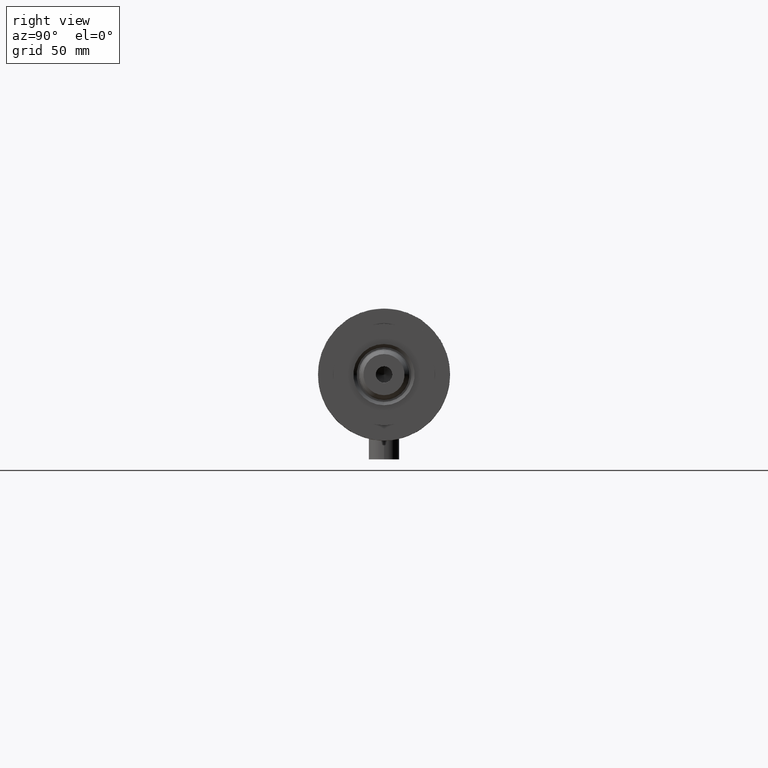
[diagram: clean part render]
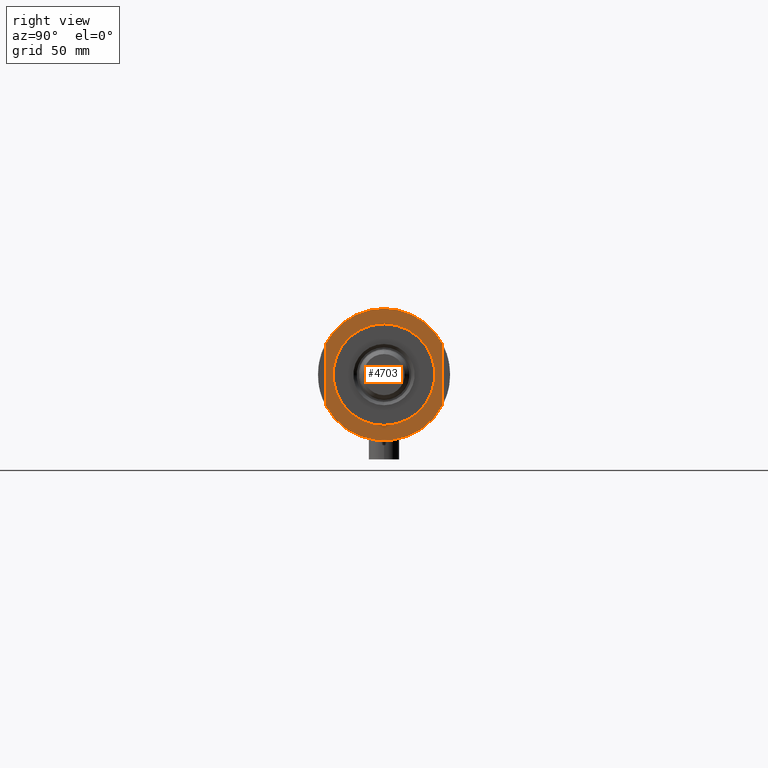
[diagram: same view with one face highlighted and labeled with its STEP entity id]
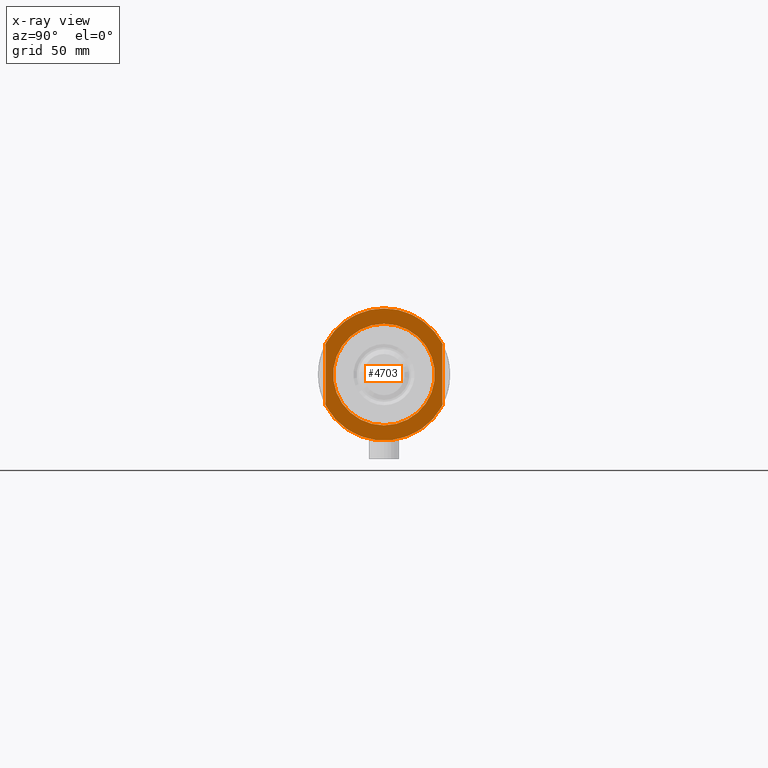
[diagram: x-ray of the same camera — body ghosted, the highlighted face saturated]
A machine part, right view. The second image highlights one B-rep face of the part: STEP entity #4703.
The next image is the same camera in x-ray: the body ghosted, the highlighted face saturated — about 0% of this face is hidden behind the body in this view.
In plain terms, the highlighted planar face has unit normal (1, 0, -0).
Its self-contained STEP definition (entity closure, byte-faithful):
#53 = AXIS2_PLACEMENT_3D ( 'NONE', #522, #3684, #4101 ) ;
#102 = ORIENTED_EDGE ( 'NONE', *, *, #3734, .F. ) ;
#146 = CIRCLE ( 'NONE', #2332, 26.00000000000000355 ) ;
#265 = ORIENTED_EDGE ( 'NONE', *, *, #4453, .T. ) ;
#314 = DIRECTION ( 'NONE',  ( 0.000000000000000000, 0.000000000000000000, 1.000000000000000000 ) ) ;
#338 = EDGE_LOOP ( 'NONE', ( #2883, #265 ) ) ;
#399 = VECTOR ( 'NONE', #1538, 1000.000000000000000 ) ;
#507 = DIRECTION ( 'NONE',  ( 1.000000000000000000, 0.000000000000000000, 0.000000000000000000 ) ) ;
#522 = CARTESIAN_POINT ( 'NONE',  ( 0.000000000000000000, 0.000000000000000000, 15.50000000000000000 ) ) ;
#603 = CARTESIAN_POINT ( 'NONE',  ( 0.000000000000000000, 0.000000000000000000, 15.50000000000000000 ) ) ;
#627 = DIRECTION ( 'NONE',  ( 1.000000000000000000, 0.000000000000000000, 0.000000000000000000 ) ) ;
#755 = ORIENTED_EDGE ( 'NONE', *, *, #1367, .F. ) ;
#779 = CARTESIAN_POINT ( 'NONE',  ( -12.12435565298214613, 23.00000000000000355, 15.50000000000000000 ) ) ;
#804 = CARTESIAN_POINT ( 'NONE',  ( 0.000000000000000000, 0.000000000000000000, 15.50000000000000000 ) ) ;
#869 = DIRECTION ( 'NONE',  ( 1.000000000000000000, 0.000000000000000000, 0.000000000000000000 ) ) ;
#885 = CIRCLE ( 'NONE', #4080, 26.00000000000000355 ) ;
#923 = CARTESIAN_POINT ( 'NONE',  ( 0.000000000000000000, 0.000000000000000000, 15.50000000000000000 ) ) ;
#995 = VERTEX_POINT ( 'NONE', #779 ) ;
#1042 = DIRECTION ( 'NONE',  ( 0.000000000000000000, 0.000000000000000000, 1.000000000000000000 ) ) ;
#1043 = VECTOR ( 'NONE', #2930, 1000.000000000000000 ) ;
#1151 = AXIS2_PLACEMENT_3D ( 'NONE', #923, #1709, #507 ) ;
#1154 = CIRCLE ( 'NONE', #53, 20.00000000000000000 ) ;
#1173 = ORIENTED_EDGE ( 'NONE', *, *, #2143, .T. ) ;
#1367 = EDGE_CURVE ( 'NONE', #995, #2522, #4236, .T. ) ;
#1424 = CARTESIAN_POINT ( 'NONE',  ( -12.12435565298215145, 23.00000000000000355, 15.50000000000000000 ) ) ;
#1538 = DIRECTION ( 'NONE',  ( -1.000000000000000000, -0.000000000000000000, -0.000000000000000000 ) ) ;
#1709 = DIRECTION ( 'NONE',  ( -0.000000000000000000, -0.000000000000000000, -1.000000000000000000 ) ) ;
#1719 = AXIS2_PLACEMENT_3D ( 'NONE', #4922, #4582, #869 ) ;
#1779 = FACE_BOUND ( 'NONE', #338, .T. ) ;
#1934 = LINE ( 'NONE', #5139, #399 ) ;
#2065 = AXIS2_PLACEMENT_3D ( 'NONE', #603, #4021, #4364 ) ;
#2143 = EDGE_CURVE ( 'NONE', #3459, #2522, #3490, .T. ) ;
#2321 = EDGE_LOOP ( 'NONE', ( #102, #1173, #755, #4098, #2380 ) ) ;
#2332 = AXIS2_PLACEMENT_3D ( 'NONE', #804, #314, #4331 ) ;
#2380 = ORIENTED_EDGE ( 'NONE', *, *, #3257, .T. ) ;
#2381 = VERTEX_POINT ( 'NONE', #4350 ) ;
#2522 = VERTEX_POINT ( 'NONE', #4547 ) ;
#2883 = ORIENTED_EDGE ( 'NONE', *, *, #4037, .T. ) ;
#2928 = VERTEX_POINT ( 'NONE', #3700 ) ;
#2930 = DIRECTION ( 'NONE',  ( 1.000000000000000000, 0.000000000000000000, 0.000000000000000000 ) ) ;
#3016 = CARTESIAN_POINT ( 'NONE',  ( 12.12435565298215323, -22.99999999999999645, 15.50000000000000000 ) ) ;
#3119 = CARTESIAN_POINT ( 'NONE',  ( -26.00000000000000355, 0.000000000000000000, 15.50000000000000000 ) ) ;
#3257 = EDGE_CURVE ( 'NONE', #5063, #2928, #146, .T. ) ;
#3385 = FACE_OUTER_BOUND ( 'NONE', #2321, .T. ) ;
#3459 = VERTEX_POINT ( 'NONE', #3016 ) ;
#3490 = CIRCLE ( 'NONE', #1719, 26.00000000000000355 ) ;
#3684 = DIRECTION ( 'NONE',  ( -0.000000000000000000, -0.000000000000000000, -1.000000000000000000 ) ) ;
#3700 = CARTESIAN_POINT ( 'NONE',  ( -12.12435565298215323, -22.99999999999999645, 15.50000000000000000 ) ) ;
#3734 = EDGE_CURVE ( 'NONE', #3459, #2928, #1934, .T. ) ;
#3838 = VERTEX_POINT ( 'NONE', #4549 ) ;
#4011 = CIRCLE ( 'NONE', #1151, 20.00000000000000000 ) ;
#4021 = DIRECTION ( 'NONE',  ( 0.000000000000000000, 0.000000000000000000, 1.000000000000000000 ) ) ;
#4037 = EDGE_CURVE ( 'NONE', #2381, #3838, #4011, .T. ) ;
#4080 = AXIS2_PLACEMENT_3D ( 'NONE', #5021, #1042, #627 ) ;
#4098 = ORIENTED_EDGE ( 'NONE', *, *, #4632, .T. ) ;
#4101 = DIRECTION ( 'NONE',  ( 1.000000000000000000, 0.000000000000000000, 0.000000000000000000 ) ) ;
#4205 = PLANE ( 'NONE',  #2065 ) ;
#4236 = LINE ( 'NONE', #1424, #1043 ) ;
#4331 = DIRECTION ( 'NONE',  ( 1.000000000000000000, 0.000000000000000000, 0.000000000000000000 ) ) ;
#4350 = CARTESIAN_POINT ( 'NONE',  ( 20.00000000000000000, 0.000000000000000000, 15.50000000000000000 ) ) ;
#4364 = DIRECTION ( 'NONE',  ( 1.000000000000000000, 0.000000000000000000, -0.000000000000000000 ) ) ;
#4453 = EDGE_CURVE ( 'NONE', #3838, #2381, #1154, .T. ) ;
#4547 = CARTESIAN_POINT ( 'NONE',  ( 12.12435565298214790, 23.00000000000000355, 15.50000000000000000 ) ) ;
#4549 = CARTESIAN_POINT ( 'NONE',  ( -20.00000000000000000, 2.449293598294706513E-15, 15.50000000000000000 ) ) ;
#4582 = DIRECTION ( 'NONE',  ( 0.000000000000000000, 0.000000000000000000, 1.000000000000000000 ) ) ;
#4632 = EDGE_CURVE ( 'NONE', #995, #5063, #885, .T. ) ;
#4703 = ADVANCED_FACE ( 'NONE', ( #1779, #3385 ), #4205, .T. ) ;
#4922 = CARTESIAN_POINT ( 'NONE',  ( 0.000000000000000000, 0.000000000000000000, 15.50000000000000000 ) ) ;
#5021 = CARTESIAN_POINT ( 'NONE',  ( 0.000000000000000000, 0.000000000000000000, 15.50000000000000000 ) ) ;
#5063 = VERTEX_POINT ( 'NONE', #3119 ) ;
#5139 = CARTESIAN_POINT ( 'NONE',  ( -12.12435565298215145, -22.99999999999999645, 15.50000000000000000 ) ) ;